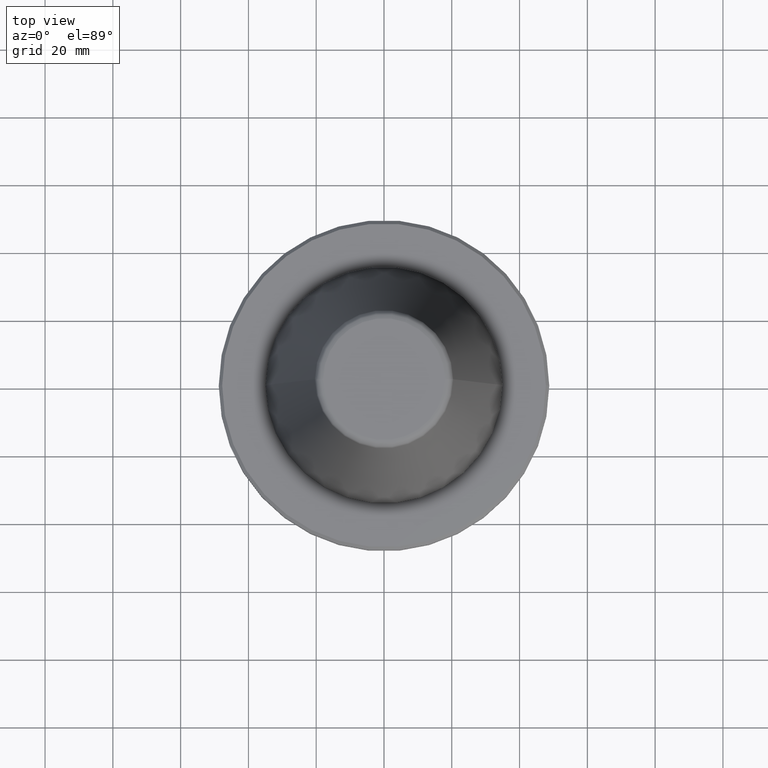
[diagram: clean part render]
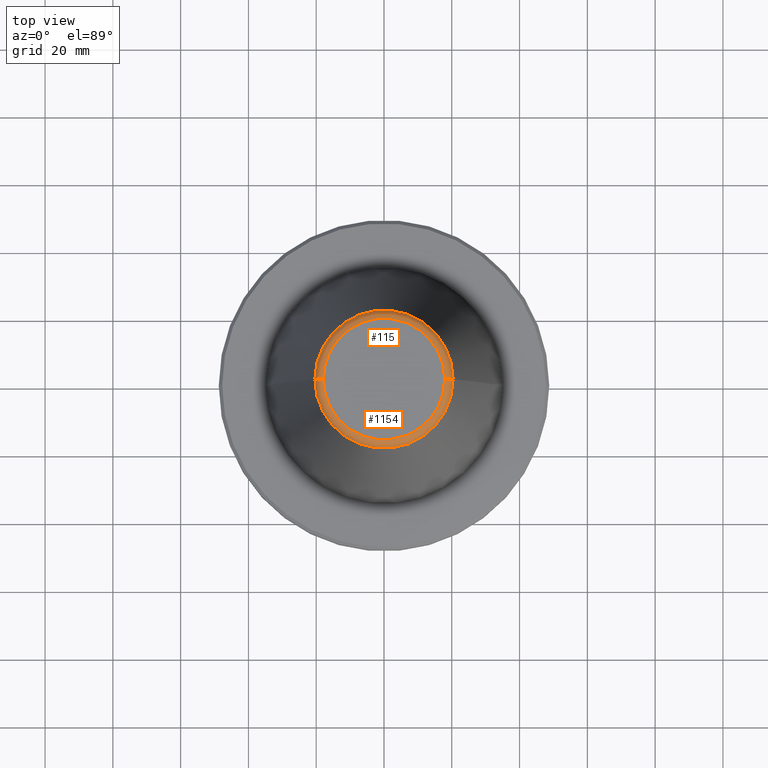
[diagram: same view with one multi-face feature highlighted, each face labeled with its STEP entity id]
A machine part, top view. The highlighted faces form ONE feature: a constant-radius fillet chain: 2 tangent blend faces with common blend radius 2.5 mm. The faces share edges in the B-rep.
Their STEP definitions:
[1] entity #115 (Torus):
#8 = DIRECTION ( 'NONE',  ( -0.0000000000000000000, -0.0000000000000000000, 1.000000000000000000 ) ) ;
#48 = DIRECTION ( 'NONE',  ( 1.000000000000000000, 0.0000000000000000000, 0.0000000000000000000 ) ) ;
#69 = TOROIDAL_SURFACE ( 'NONE', #942, 17.92446055806162900, 2.499999999999961400 ) ;
#91 = DIRECTION ( 'NONE',  ( 0.0000000000000000000, -1.000000000000000000, 0.0000000000000000000 ) ) ;
#115 = ADVANCED_FACE ( 'NONE', ( #353 ), #69, .T. ) ;
#122 = CIRCLE ( 'NONE', #1032, 17.92446055806162900 ) ;
#139 = EDGE_CURVE ( 'NONE', #906, #947, #1248, .T. ) ;
#217 = CARTESIAN_POINT ( 'NONE',  ( -20.39829252569125400, 0.0000000000000000000, 99.61077055857381900 ) ) ;
#270 = CARTESIAN_POINT ( 'NONE',  ( 0.0000000000000000000, 0.0000000000000000000, 99.25000000000005700 ) ) ;
#290 = CARTESIAN_POINT ( 'NONE',  ( -17.92446055806162900, 2.346591844926615600E-015, 101.7500000000000100 ) ) ;
#318 = CARTESIAN_POINT ( 'NONE',  ( 0.0000000000000000000, 0.0000000000000000000, 101.7500000000000100 ) ) ;
#353 = FACE_OUTER_BOUND ( 'NONE', #772, .T. ) ;
#371 = EDGE_CURVE ( 'NONE', #1030, #383, #815, .T. ) ;
#383 = VERTEX_POINT ( 'NONE', #290 ) ;
#421 = AXIS2_PLACEMENT_3D ( 'NONE', #523, #791, #1121 ) ;
#435 = DIRECTION ( 'NONE',  ( 0.0000000000000000000, 0.0000000000000000000, -1.000000000000000000 ) ) ;
#485 = CARTESIAN_POINT ( 'NONE',  ( 20.39829252569125400, 3.387574655494043800E-015, 99.61077055857381900 ) ) ;
#523 = CARTESIAN_POINT ( 'NONE',  ( 0.0000000000000000000, 0.0000000000000000000, 99.61077055857381900 ) ) ;
#630 = DIRECTION ( 'NONE',  ( -1.000000000000000000, 1.224646799147354400E-016, 0.0000000000000000000 ) ) ;
#772 = EDGE_LOOP ( 'NONE', ( #1127, #824, #831, #997 ) ) ;
#791 = DIRECTION ( 'NONE',  ( -0.0000000000000000000, -0.0000000000000000000, 1.000000000000000000 ) ) ;
#815 = CIRCLE ( 'NONE', #1177, 2.499999999999960500 ) ;
#824 = ORIENTED_EDGE ( 'NONE', *, *, #371, .T. ) ;
#831 = ORIENTED_EDGE ( 'NONE', *, *, #939, .F. ) ;
#847 = CARTESIAN_POINT ( 'NONE',  ( -17.92446055806162900, 2.195113324887315200E-015, 99.25000000000005700 ) ) ;
#848 = EDGE_CURVE ( 'NONE', #906, #1030, #1081, .T. ) ;
#888 = AXIS2_PLACEMENT_3D ( 'NONE', #999, #91, #435 ) ;
#905 = DIRECTION ( 'NONE',  ( -0.0000000000000000000, -0.0000000000000000000, 1.000000000000000000 ) ) ;
#906 = VERTEX_POINT ( 'NONE', #485 ) ;
#939 = EDGE_CURVE ( 'NONE', #947, #383, #122, .T. ) ;
#942 = AXIS2_PLACEMENT_3D ( 'NONE', #270, #905, #48 ) ;
#947 = VERTEX_POINT ( 'NONE', #1157 ) ;
#975 = DIRECTION ( 'NONE',  ( 1.224646799147353200E-016, 1.000000000000000000, 0.0000000000000000000 ) ) ;
#997 = ORIENTED_EDGE ( 'NONE', *, *, #139, .F. ) ;
#999 = CARTESIAN_POINT ( 'NONE',  ( 17.92446055806162900, 0.0000000000000000000, 99.25000000000005700 ) ) ;
#1030 = VERTEX_POINT ( 'NONE', #217 ) ;
#1032 = AXIS2_PLACEMENT_3D ( 'NONE', #318, #8, #1039 ) ;
#1039 = DIRECTION ( 'NONE',  ( 1.000000000000000000, 0.0000000000000000000, 0.0000000000000000000 ) ) ;
#1081 = CIRCLE ( 'NONE', #421, 20.39829252569125400 ) ;
#1121 = DIRECTION ( 'NONE',  ( 1.000000000000000000, 0.0000000000000000000, 0.0000000000000000000 ) ) ;
#1127 = ORIENTED_EDGE ( 'NONE', *, *, #848, .T. ) ;
#1157 = CARTESIAN_POINT ( 'NONE',  ( 17.92446055806162900, 0.0000000000000000000, 101.7500000000000100 ) ) ;
#1177 = AXIS2_PLACEMENT_3D ( 'NONE', #847, #975, #630 ) ;
#1248 = CIRCLE ( 'NONE', #888, 2.499999999999960500 ) ;
[2] entity #1154 (Torus):
#65 = DIRECTION ( 'NONE',  ( 1.000000000000000000, 0.0000000000000000000, 0.0000000000000000000 ) ) ;
#76 = ORIENTED_EDGE ( 'NONE', *, *, #204, .T. ) ;
#91 = DIRECTION ( 'NONE',  ( 0.0000000000000000000, -1.000000000000000000, 0.0000000000000000000 ) ) ;
#139 = EDGE_CURVE ( 'NONE', #906, #947, #1248, .T. ) ;
#160 = AXIS2_PLACEMENT_3D ( 'NONE', #690, #1212, #1101 ) ;
#178 = ORIENTED_EDGE ( 'NONE', *, *, #371, .F. ) ;
#204 = EDGE_CURVE ( 'NONE', #1030, #906, #945, .T. ) ;
#217 = CARTESIAN_POINT ( 'NONE',  ( -20.39829252569125400, 0.0000000000000000000, 99.61077055857381900 ) ) ;
#290 = CARTESIAN_POINT ( 'NONE',  ( -17.92446055806162900, 2.346591844926615600E-015, 101.7500000000000100 ) ) ;
#323 = DIRECTION ( 'NONE',  ( -0.0000000000000000000, -0.0000000000000000000, 1.000000000000000000 ) ) ;
#371 = EDGE_CURVE ( 'NONE', #1030, #383, #815, .T. ) ;
#383 = VERTEX_POINT ( 'NONE', #290 ) ;
#435 = DIRECTION ( 'NONE',  ( 0.0000000000000000000, 0.0000000000000000000, -1.000000000000000000 ) ) ;
#485 = CARTESIAN_POINT ( 'NONE',  ( 20.39829252569125400, 3.387574655494043800E-015, 99.61077055857381900 ) ) ;
#630 = DIRECTION ( 'NONE',  ( -1.000000000000000000, 1.224646799147354400E-016, 0.0000000000000000000 ) ) ;
#670 = EDGE_LOOP ( 'NONE', ( #178, #76, #983, #1229 ) ) ;
#690 = CARTESIAN_POINT ( 'NONE',  ( 0.0000000000000000000, 0.0000000000000000000, 99.61077055857381900 ) ) ;
#697 = TOROIDAL_SURFACE ( 'NONE', #889, 17.92446055806162900, 2.499999999999961400 ) ;
#733 = AXIS2_PLACEMENT_3D ( 'NONE', #1034, #323, #65 ) ;
#754 = CIRCLE ( 'NONE', #733, 17.92446055806162900 ) ;
#815 = CIRCLE ( 'NONE', #1177, 2.499999999999960500 ) ;
#847 = CARTESIAN_POINT ( 'NONE',  ( -17.92446055806162900, 2.195113324887315200E-015, 99.25000000000005700 ) ) ;
#888 = AXIS2_PLACEMENT_3D ( 'NONE', #999, #91, #435 ) ;
#889 = AXIS2_PLACEMENT_3D ( 'NONE', #916, #1041, #940 ) ;
#906 = VERTEX_POINT ( 'NONE', #485 ) ;
#916 = CARTESIAN_POINT ( 'NONE',  ( 0.0000000000000000000, 0.0000000000000000000, 99.25000000000005700 ) ) ;
#923 = EDGE_CURVE ( 'NONE', #383, #947, #754, .T. ) ;
#940 = DIRECTION ( 'NONE',  ( 1.000000000000000000, 0.0000000000000000000, 0.0000000000000000000 ) ) ;
#945 = CIRCLE ( 'NONE', #160, 20.39829252569125400 ) ;
#947 = VERTEX_POINT ( 'NONE', #1157 ) ;
#975 = DIRECTION ( 'NONE',  ( 1.224646799147353200E-016, 1.000000000000000000, 0.0000000000000000000 ) ) ;
#983 = ORIENTED_EDGE ( 'NONE', *, *, #139, .T. ) ;
#999 = CARTESIAN_POINT ( 'NONE',  ( 17.92446055806162900, 0.0000000000000000000, 99.25000000000005700 ) ) ;
#1030 = VERTEX_POINT ( 'NONE', #217 ) ;
#1034 = CARTESIAN_POINT ( 'NONE',  ( 0.0000000000000000000, 0.0000000000000000000, 101.7500000000000100 ) ) ;
#1041 = DIRECTION ( 'NONE',  ( -0.0000000000000000000, -0.0000000000000000000, 1.000000000000000000 ) ) ;
#1101 = DIRECTION ( 'NONE',  ( 1.000000000000000000, 0.0000000000000000000, 0.0000000000000000000 ) ) ;
#1154 = ADVANCED_FACE ( 'NONE', ( #1184 ), #697, .T. ) ;
#1157 = CARTESIAN_POINT ( 'NONE',  ( 17.92446055806162900, 0.0000000000000000000, 101.7500000000000100 ) ) ;
#1177 = AXIS2_PLACEMENT_3D ( 'NONE', #847, #975, #630 ) ;
#1184 = FACE_OUTER_BOUND ( 'NONE', #670, .T. ) ;
#1212 = DIRECTION ( 'NONE',  ( -0.0000000000000000000, -0.0000000000000000000, 1.000000000000000000 ) ) ;
#1229 = ORIENTED_EDGE ( 'NONE', *, *, #923, .F. ) ;
#1248 = CIRCLE ( 'NONE', #888, 2.499999999999960500 ) ;